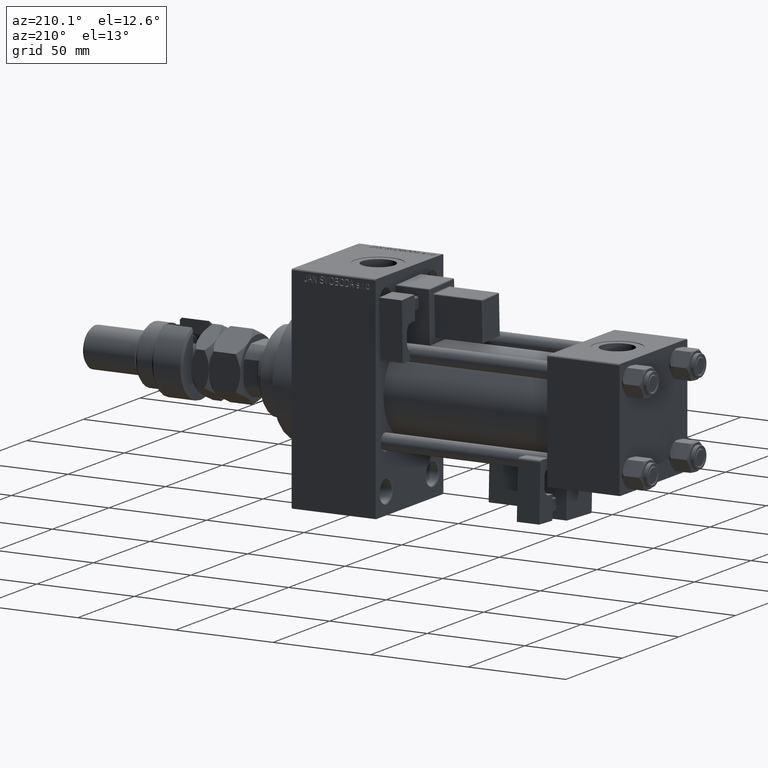
[diagram: clean part render]
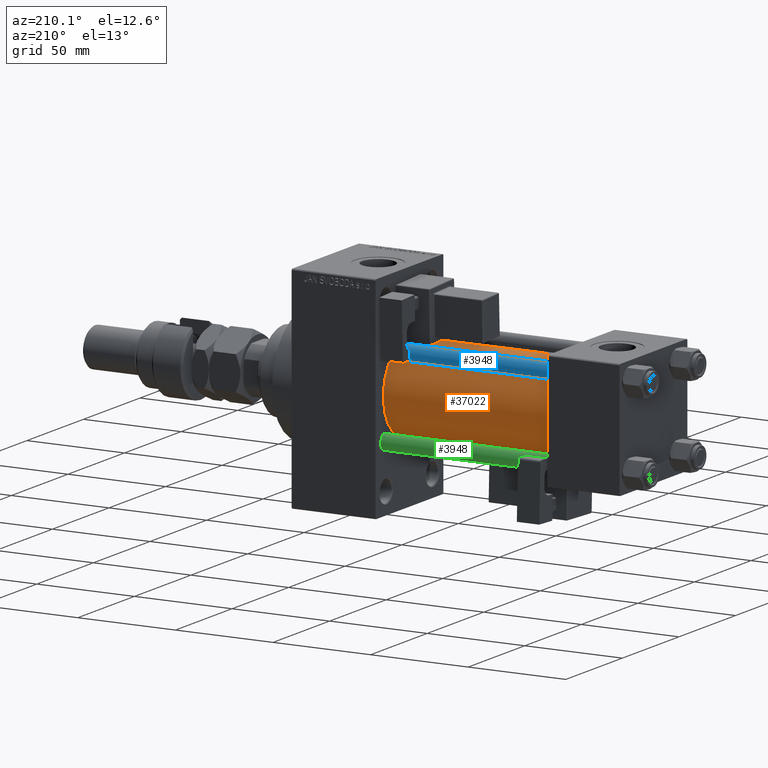
[diagram: same view with three faces highlighted in distinct colors, each labeled with its STEP entity id]
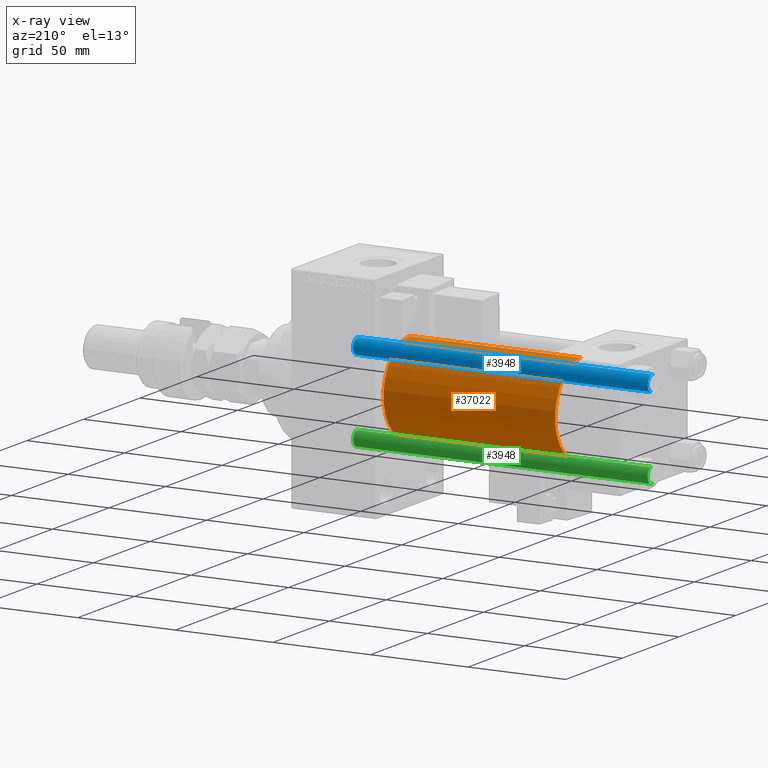
[diagram: x-ray of the same camera — body ghosted, the three highlighted faces saturated]
A machine part, auxiliary view with three faces highlighted in distinct colors.
The next image is the same camera in x-ray (body ghosted, the three faces saturated) — at least one of them is partly hidden behind the body in this view.
Their STEP definitions:

[orange] entity #37022 — the highlighted cylindrical surface (partial cylindrical patch) has radius 23 mm, axis along (-1, -0, -0).
#569 = CIRCLE ( 'NONE', #45572, 23.00000000000000000 ) ;
#2534 = DIRECTION ( 'NONE',  ( -1.000000000000000000, -0.000000000000000000, -0.000000000000000000 ) ) ;
#5184 = ORIENTED_EDGE ( 'NONE', *, *, #21819, .F. ) ;
#6274 = CARTESIAN_POINT ( 'NONE',  ( 125.0000000000000000, 2.146024240737016609E-16, -23.00000000000000000 ) ) ;
#8105 = DIRECTION ( 'NONE',  ( 0.000000000000000000, 0.000000000000000000, -1.000000000000000000 ) ) ;
#8468 = CIRCLE ( 'NONE', #20335, 23.00000000000000000 ) ;
#8489 = VECTOR ( 'NONE', #51495, 1000.000000000000000 ) ;
#8990 = DIRECTION ( 'NONE',  ( 0.000000000000000000, 0.000000000000000000, 1.000000000000000000 ) ) ;
#11442 = CARTESIAN_POINT ( 'NONE',  ( 37.00000000000000711, 2.146024240737016609E-16, -23.00000000000000000 ) ) ;
#11824 = CARTESIAN_POINT ( 'NONE',  ( 125.0000000000000000, -2.602085213965210642E-15, 0.000000000000000000 ) ) ;
#14560 = CARTESIAN_POINT ( 'NONE',  ( 125.0000000000000000, -2.602085213965210642E-15, 23.00000000000000000 ) ) ;
#14907 = AXIS2_PLACEMENT_3D ( 'NONE', #21462, #45400, #8990 ) ;
#16612 = DIRECTION ( 'NONE',  ( 1.000000000000000000, 0.000000000000000000, 0.000000000000000000 ) ) ;
#17488 = CYLINDRICAL_SURFACE ( 'NONE', #14907, 23.00000000000000000 ) ;
#18659 = VERTEX_POINT ( 'NONE', #24987 ) ;
#19101 = DIRECTION ( 'NONE',  ( 0.000000000000000000, 0.000000000000000000, 1.000000000000000000 ) ) ;
#20335 = AXIS2_PLACEMENT_3D ( 'NONE', #11824, #16612, #8105 ) ;
#20753 = ORIENTED_EDGE ( 'NONE', *, *, #46891, .F. ) ;
#21462 = CARTESIAN_POINT ( 'NONE',  ( 125.0000000000000000, -2.602085213965210642E-15, 0.000000000000000000 ) ) ;
#21819 = EDGE_CURVE ( 'NONE', #40013, #18659, #8468, .T. ) ;
#22826 = DIRECTION ( 'NONE',  ( 1.000000000000000000, -0.000000000000000000, 0.000000000000000000 ) ) ;
#24551 = CARTESIAN_POINT ( 'NONE',  ( 125.0000000000000000, 2.146024240737016609E-16, -23.00000000000000000 ) ) ;
#24987 = CARTESIAN_POINT ( 'NONE',  ( 125.0000000000000000, -2.602085213965210642E-15, 23.00000000000000000 ) ) ;
#27610 = CARTESIAN_POINT ( 'NONE',  ( 37.00000000000000711, -2.602085213965210642E-15, 0.000000000000000000 ) ) ;
#29176 = FACE_OUTER_BOUND ( 'NONE', #41937, .T. ) ;
#30375 = EDGE_CURVE ( 'NONE', #40013, #44095, #42668, .T. ) ;
#32563 = VECTOR ( 'NONE', #2534, 1000.000000000000000 ) ;
#33919 = VERTEX_POINT ( 'NONE', #47715 ) ;
#36158 = ORIENTED_EDGE ( 'NONE', *, *, #39430, .T. ) ;
#37022 = ADVANCED_FACE ( 'NONE', ( #29176 ), #17488, .T. ) ;
#38740 = LINE ( 'NONE', #14560, #8489 ) ;
#39430 = EDGE_CURVE ( 'NONE', #44095, #33919, #569, .T. ) ;
#40013 = VERTEX_POINT ( 'NONE', #24551 ) ;
#41937 = EDGE_LOOP ( 'NONE', ( #5184, #45842, #36158, #20753 ) ) ;
#42668 = LINE ( 'NONE', #6274, #32563 ) ;
#44095 = VERTEX_POINT ( 'NONE', #11442 ) ;
#45400 = DIRECTION ( 'NONE',  ( -1.000000000000000000, -0.000000000000000000, -0.000000000000000000 ) ) ;
#45572 = AXIS2_PLACEMENT_3D ( 'NONE', #27610, #22826, #19101 ) ;
#45842 = ORIENTED_EDGE ( 'NONE', *, *, #30375, .T. ) ;
#46891 = EDGE_CURVE ( 'NONE', #18659, #33919, #38740, .T. ) ;
#47715 = CARTESIAN_POINT ( 'NONE',  ( 37.00000000000000711, -2.602085213965210642E-15, 23.00000000000000000 ) ) ;
#51495 = DIRECTION ( 'NONE',  ( -1.000000000000000000, -0.000000000000000000, -0.000000000000000000 ) ) ;

[blue] entity #3948 — the highlighted cylindrical surface (edge-blend (fillet) strip) has radius 4 mm, axis along (-1, -0, 0).
#456 = DIRECTION ( 'NONE',  ( 1.000000000000000000, 0.000000000000000000, 0.000000000000000000 ) ) ;
#1689 = CIRCLE ( 'NONE', #31397, 4.000000000000000000 ) ;
#3385 = VECTOR ( 'NONE', #6655, 1000.000000000000000 ) ;
#3948 = ADVANCED_FACE ( 'NONE', ( #28119 ), #40076, .T. ) ;
#5650 = CIRCLE ( 'NONE', #52357, 4.000000000000000000 ) ;
#6655 = DIRECTION ( 'NONE',  ( -0.000000000000000000, -0.000000000000000000, -1.000000000000000000 ) ) ;
#10008 = CARTESIAN_POINT ( 'NONE',  ( -4.000000000000000000, 0.000000000000000000, 151.5000000000000284 ) ) ;
#10137 = LINE ( 'NONE', #51310, #3385 ) ;
#12688 = CARTESIAN_POINT ( 'NONE',  ( 0.000000000000000000, 0.000000000000000000, 152.0000000000000000 ) ) ;
#14583 = AXIS2_PLACEMENT_3D ( 'NONE', #12688, #23605, #16435 ) ;
#15006 = ORIENTED_EDGE ( 'NONE', *, *, #22208, .F. ) ;
#15120 = DIRECTION ( 'NONE',  ( 0.000000000000000000, 0.000000000000000000, -1.000000000000000000 ) ) ;
#16435 = DIRECTION ( 'NONE',  ( -1.000000000000000000, 0.000000000000000000, 0.000000000000000000 ) ) ;
#17287 = EDGE_LOOP ( 'NONE', ( #51279, #40943, #46720, #15006 ) ) ;
#22208 = EDGE_CURVE ( 'NONE', #34599, #51990, #10137, .T. ) ;
#22523 = VERTEX_POINT ( 'NONE', #30666 ) ;
#23605 = DIRECTION ( 'NONE',  ( -0.000000000000000000, -0.000000000000000000, -1.000000000000000000 ) ) ;
#26732 = VERTEX_POINT ( 'NONE', #37522 ) ;
#28119 = FACE_OUTER_BOUND ( 'NONE', #17287, .T. ) ;
#30666 = CARTESIAN_POINT ( 'NONE',  ( 4.000000000000000000, 4.898587196589412829E-16, 151.5000000000000284 ) ) ;
#30915 = DIRECTION ( 'NONE',  ( -0.000000000000000000, -0.000000000000000000, -1.000000000000000000 ) ) ;
#31397 = AXIS2_PLACEMENT_3D ( 'NONE', #45372, #33923, #456 ) ;
#33923 = DIRECTION ( 'NONE',  ( -0.000000000000000000, -0.000000000000000000, 1.000000000000000000 ) ) ;
#34599 = VERTEX_POINT ( 'NONE', #10008 ) ;
#35320 = DIRECTION ( 'NONE',  ( 1.000000000000000000, 0.000000000000000000, 0.000000000000000000 ) ) ;
#35571 = CARTESIAN_POINT ( 'NONE',  ( 0.000000000000000000, 0.000000000000000000, 151.5000000000000284 ) ) ;
#37522 = CARTESIAN_POINT ( 'NONE',  ( 4.000000000000000000, 4.898587196589412829E-16, 0.5000000000000281997 ) ) ;
#39141 = CARTESIAN_POINT ( 'NONE',  ( 4.000000000000000000, 4.898587196589412829E-16, 152.0000000000000000 ) ) ;
#39451 = EDGE_CURVE ( 'NONE', #34599, #22523, #5650, .T. ) ;
#40076 = CYLINDRICAL_SURFACE ( 'NONE', #14583, 4.000000000000000000 ) ;
#40943 = ORIENTED_EDGE ( 'NONE', *, *, #40947, .T. ) ;
#40947 = EDGE_CURVE ( 'NONE', #22523, #26732, #52425, .T. ) ;
#45372 = CARTESIAN_POINT ( 'NONE',  ( 0.000000000000000000, 0.000000000000000000, 0.5000000000000281997 ) ) ;
#46720 = ORIENTED_EDGE ( 'NONE', *, *, #47651, .T. ) ;
#47651 = EDGE_CURVE ( 'NONE', #26732, #51990, #1689, .T. ) ;
#48691 = CARTESIAN_POINT ( 'NONE',  ( -4.000000000000000000, 0.000000000000000000, 0.5000000000000281997 ) ) ;
#49124 = VECTOR ( 'NONE', #30915, 1000.000000000000000 ) ;
#51279 = ORIENTED_EDGE ( 'NONE', *, *, #39451, .T. ) ;
#51310 = CARTESIAN_POINT ( 'NONE',  ( -4.000000000000000000, 0.000000000000000000, 152.0000000000000000 ) ) ;
#51990 = VERTEX_POINT ( 'NONE', #48691 ) ;
#52357 = AXIS2_PLACEMENT_3D ( 'NONE', #35571, #15120, #35320 ) ;
#52425 = LINE ( 'NONE', #39141, #49124 ) ;

[green] entity #3948 — the highlighted cylindrical surface (edge-blend (fillet) strip) has radius 4 mm, axis along (1, -0, 0).
#456 = DIRECTION ( 'NONE',  ( 1.000000000000000000, 0.000000000000000000, 0.000000000000000000 ) ) ;
#1689 = CIRCLE ( 'NONE', #31397, 4.000000000000000000 ) ;
#3385 = VECTOR ( 'NONE', #6655, 1000.000000000000000 ) ;
#3948 = ADVANCED_FACE ( 'NONE', ( #28119 ), #40076, .T. ) ;
#5650 = CIRCLE ( 'NONE', #52357, 4.000000000000000000 ) ;
#6655 = DIRECTION ( 'NONE',  ( -0.000000000000000000, -0.000000000000000000, -1.000000000000000000 ) ) ;
#10008 = CARTESIAN_POINT ( 'NONE',  ( -4.000000000000000000, 0.000000000000000000, 151.5000000000000284 ) ) ;
#10137 = LINE ( 'NONE', #51310, #3385 ) ;
#12688 = CARTESIAN_POINT ( 'NONE',  ( 0.000000000000000000, 0.000000000000000000, 152.0000000000000000 ) ) ;
#14583 = AXIS2_PLACEMENT_3D ( 'NONE', #12688, #23605, #16435 ) ;
#15006 = ORIENTED_EDGE ( 'NONE', *, *, #22208, .F. ) ;
#15120 = DIRECTION ( 'NONE',  ( 0.000000000000000000, 0.000000000000000000, -1.000000000000000000 ) ) ;
#16435 = DIRECTION ( 'NONE',  ( -1.000000000000000000, 0.000000000000000000, 0.000000000000000000 ) ) ;
#17287 = EDGE_LOOP ( 'NONE', ( #51279, #40943, #46720, #15006 ) ) ;
#22208 = EDGE_CURVE ( 'NONE', #34599, #51990, #10137, .T. ) ;
#22523 = VERTEX_POINT ( 'NONE', #30666 ) ;
#23605 = DIRECTION ( 'NONE',  ( -0.000000000000000000, -0.000000000000000000, -1.000000000000000000 ) ) ;
#26732 = VERTEX_POINT ( 'NONE', #37522 ) ;
#28119 = FACE_OUTER_BOUND ( 'NONE', #17287, .T. ) ;
#30666 = CARTESIAN_POINT ( 'NONE',  ( 4.000000000000000000, 4.898587196589412829E-16, 151.5000000000000284 ) ) ;
#30915 = DIRECTION ( 'NONE',  ( -0.000000000000000000, -0.000000000000000000, -1.000000000000000000 ) ) ;
#31397 = AXIS2_PLACEMENT_3D ( 'NONE', #45372, #33923, #456 ) ;
#33923 = DIRECTION ( 'NONE',  ( -0.000000000000000000, -0.000000000000000000, 1.000000000000000000 ) ) ;
#34599 = VERTEX_POINT ( 'NONE', #10008 ) ;
#35320 = DIRECTION ( 'NONE',  ( 1.000000000000000000, 0.000000000000000000, 0.000000000000000000 ) ) ;
#35571 = CARTESIAN_POINT ( 'NONE',  ( 0.000000000000000000, 0.000000000000000000, 151.5000000000000284 ) ) ;
#37522 = CARTESIAN_POINT ( 'NONE',  ( 4.000000000000000000, 4.898587196589412829E-16, 0.5000000000000281997 ) ) ;
#39141 = CARTESIAN_POINT ( 'NONE',  ( 4.000000000000000000, 4.898587196589412829E-16, 152.0000000000000000 ) ) ;
#39451 = EDGE_CURVE ( 'NONE', #34599, #22523, #5650, .T. ) ;
#40076 = CYLINDRICAL_SURFACE ( 'NONE', #14583, 4.000000000000000000 ) ;
#40943 = ORIENTED_EDGE ( 'NONE', *, *, #40947, .T. ) ;
#40947 = EDGE_CURVE ( 'NONE', #22523, #26732, #52425, .T. ) ;
#45372 = CARTESIAN_POINT ( 'NONE',  ( 0.000000000000000000, 0.000000000000000000, 0.5000000000000281997 ) ) ;
#46720 = ORIENTED_EDGE ( 'NONE', *, *, #47651, .T. ) ;
#47651 = EDGE_CURVE ( 'NONE', #26732, #51990, #1689, .T. ) ;
#48691 = CARTESIAN_POINT ( 'NONE',  ( -4.000000000000000000, 0.000000000000000000, 0.5000000000000281997 ) ) ;
#49124 = VECTOR ( 'NONE', #30915, 1000.000000000000000 ) ;
#51279 = ORIENTED_EDGE ( 'NONE', *, *, #39451, .T. ) ;
#51310 = CARTESIAN_POINT ( 'NONE',  ( -4.000000000000000000, 0.000000000000000000, 152.0000000000000000 ) ) ;
#51990 = VERTEX_POINT ( 'NONE', #48691 ) ;
#52357 = AXIS2_PLACEMENT_3D ( 'NONE', #35571, #15120, #35320 ) ;
#52425 = LINE ( 'NONE', #39141, #49124 ) ;